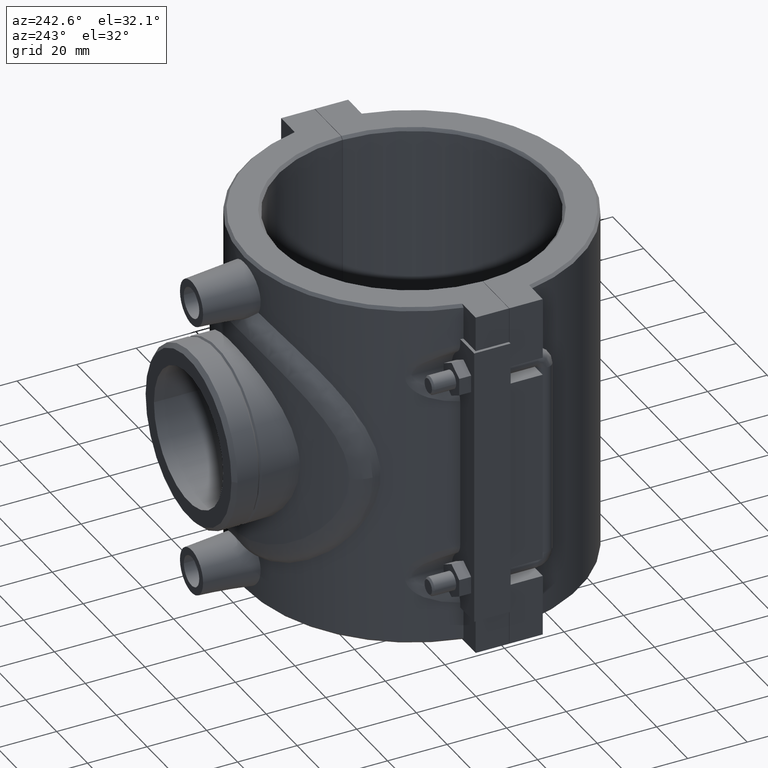
[diagram: clean part render]
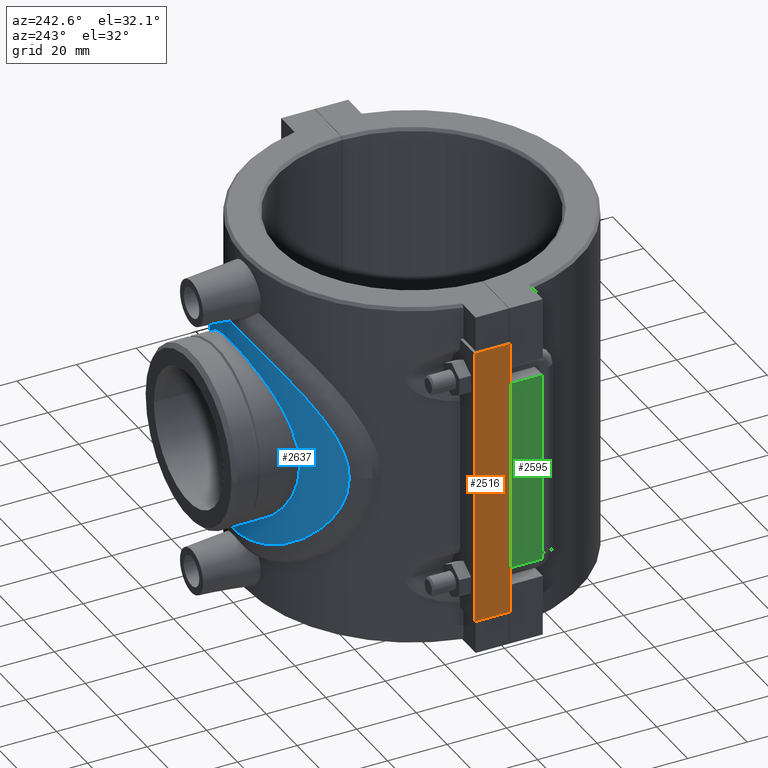
[diagram: same view with three faces highlighted in distinct colors, each labeled with its STEP entity id]
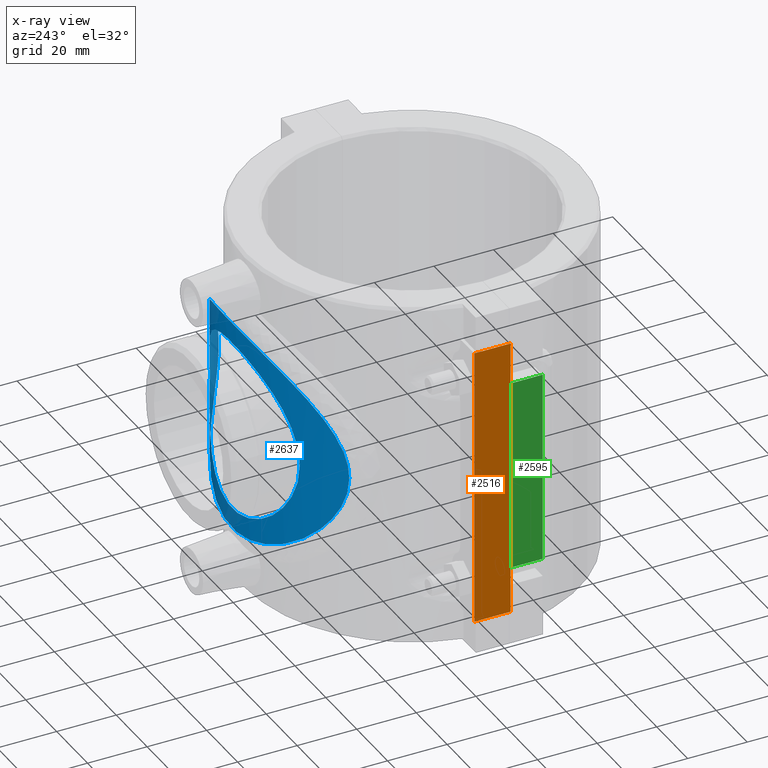
[diagram: x-ray of the same camera — body ghosted, the three highlighted faces saturated]
A machine part, auxiliary view with three faces highlighted in distinct colors.
The next image is the same camera in x-ray (body ghosted, the three faces saturated) — at least one of them is partly hidden behind the body in this view.
Their STEP definitions:

[orange] entity #2516 — the highlighted planar face has unit normal (1, 0, 0).
#217=FACE_OUTER_BOUND('',#378,.T.);
#378=EDGE_LOOP('',(#1723,#1724,#1725,#1726));
#582=LINE('',#3583,#781);
#585=LINE('',#3592,#784);
#590=LINE('',#3601,#789);
#605=LINE('',#3670,#804);
#781=VECTOR('',#2915,12.2);
#784=VECTOR('',#2922,12.2);
#789=VECTOR('',#2929,94.4);
#804=VECTOR('',#2950,94.4);
#1071=VERTEX_POINT('',#3580);
#1072=VERTEX_POINT('',#3582);
#1075=VERTEX_POINT('',#3589);
#1076=VERTEX_POINT('',#3591);
#1323=EDGE_CURVE('',#1072,#1071,#582,.T.);
#1327=EDGE_CURVE('',#1076,#1075,#585,.T.);
#1332=EDGE_CURVE('',#1072,#1075,#590,.T.);
#1353=EDGE_CURVE('',#1071,#1076,#605,.T.);
#1723=ORIENTED_EDGE('',*,*,#1332,.F.);
#1724=ORIENTED_EDGE('',*,*,#1323,.T.);
#1725=ORIENTED_EDGE('',*,*,#1353,.T.);
#1726=ORIENTED_EDGE('',*,*,#1327,.T.);
#2430=PLANE('',#2681);
#2516=ADVANCED_FACE('',(#217),#2430,.F.);
#2681=AXIS2_PLACEMENT_3D('',#3669,#2948,#2949);
#2915=DIRECTION('',(0.,-1.,0.));
#2922=DIRECTION('',(0.,1.,0.));
#2929=DIRECTION('',(0.,0.,1.));
#2948=DIRECTION('center_axis',(1.,0.,0.));
#2949=DIRECTION('ref_axis',(0.,1.,0.));
#2950=DIRECTION('',(0.,0.,1.));
#3580=CARTESIAN_POINT('',(-64.,0.0499999999999989,-47.2));
#3582=CARTESIAN_POINT('',(-64.,12.25,-47.2));
#3583=CARTESIAN_POINT('',(-64.,0.0499999999999989,-47.2));
#3589=CARTESIAN_POINT('',(-64.,12.25,47.2));
#3591=CARTESIAN_POINT('',(-64.,0.0499999999999989,47.2));
#3592=CARTESIAN_POINT('',(-64.,0.0499999999999989,47.2));
#3601=CARTESIAN_POINT('',(-64.,12.25,0.));
#3669=CARTESIAN_POINT('Origin',(-64.,0.0499999999999991,0.));
#3670=CARTESIAN_POINT('',(-64.,0.0499999999999991,0.));

[blue] entity #2637 — the highlighted cylindrical surface (partial cylindrical patch) has radius 60.3 mm, axis along (0, 0, -1).
#93=CYLINDRICAL_SURFACE('',#2861,60.3);
#143=FACE_BOUND('',#537,.T.);
#174=B_SPLINE_CURVE_WITH_KNOTS('',3,(#4505,#4506,#4507,#4508,#4509,#4510,
#4511,#4512,#4513,#4514,#4515,#4516,#4517,#4518,#4519,#4520,#4521,#4522,
#4523,#4524,#4525,#4526,#4527,#4528,#4529,#4530,#4531,#4532),
 .UNSPECIFIED.,.T.,.F.,(4,1,1,1,1,1,1,1,1,1,1,1,1,1,1,1,1,1,1,1,1,1,1,1,
1,4),(0.,1.02425932740397,2.04851865480795,3.07277798221192,4.09703730961589,
5.46271641282119,6.82839551602649,7.51123506762914,8.19407461923179,9.55975372243709,
10.9254328256424,12.2911119288477,13.656791032053,14.3396305836556,15.0224701352583,
16.3881492384636,17.7538283416689,19.1195074448742,20.4851865480795,21.1680260996821,
21.8508656512848,23.2165447544901,24.5822238576954,26.6307425125033,27.6550018399073,
28.6792611673113),.UNSPECIFIED.);
#210=B_SPLINE_CURVE_WITH_KNOTS('',3,(#5490,#5491,#5492,#5493,#5494,#5495,
#5496,#5497,#5498,#5499,#5500,#5501,#5502,#5503,#5504,#5505,#5506,#5507,
#5508,#5509,#5510,#5511,#5512,#5513,#5514,#5515,#5516,#5517,#5518,#5519,
#5520,#5521,#5522,#5523,#5524,#5525,#5526,#5527,#5528,#5529,#5530,#5531,
#5532,#5533,#5534,#5535,#5536,#5537,#5538,#5539,#5540,#5541,#5542,#5543,
#5544,#5545,#5546,#5547,#5548,#5549,#5550,#5551,#5552,#5553,#5554,#5555),
 .UNSPECIFIED.,.T.,.F.,(4,2,2,2,2,2,2,2,2,2,2,2,2,2,2,2,2,2,2,2,2,2,2,2,
2,2,2,2,2,2,2,2,4),(0.,0.560052998741934,1.12010599748387,1.6801589962258,
2.24021199496774,2.79895552299949,3.35769905103125,3.916442579063,4.47518610709475,
5.03392963512651,5.59267316315826,6.15141669119002,6.71016021922177,7.27021321796371,
7.83026621670564,8.39031921544758,8.95037221418951,9.51042521293144,10.0704782116734,
10.6305312104153,11.1905842091572,11.749327737189,12.3080712652208,12.8668147932525,
13.4255583212843,13.984301849316,14.5430453773478,15.1017889053795,15.6605324334113,
16.2205854321532,16.7806384308952,17.3406914296371,17.900744428379),
 .UNSPECIFIED.);
#338=FACE_OUTER_BOUND('',#536,.T.);
#536=EDGE_LOOP('',(#2286));
#537=EDGE_LOOP('',(#2287));
#1173=VERTEX_POINT('',#4503);
#1298=VERTEX_POINT('',#5489);
#1456=EDGE_CURVE('',#1173,#1173,#174,.T.);
#1646=EDGE_CURVE('',#1298,#1298,#210,.T.);
#2286=ORIENTED_EDGE('',*,*,#1456,.F.);
#2287=ORIENTED_EDGE('',*,*,#1646,.T.);
#2637=ADVANCED_FACE('',(#338,#143),#93,.T.);
#2861=AXIS2_PLACEMENT_3D('',#5635,#3461,#3462);
#3461=DIRECTION('center_axis',(0.,0.,-1.));
#3462=DIRECTION('ref_axis',(1.,0.,0.));
#4503=CARTESIAN_POINT('',(-42.3157894736842,42.9588635931962,-5.55111512312578E-15));
#4505=CARTESIAN_POINT('Ctrl Pts',(-42.3164324244183,42.9574916590565,-0.000177281542254723));
#4506=CARTESIAN_POINT('Ctrl Pts',(-42.3160445018875,42.9581537197012,-2.80072938108253));
#4507=CARTESIAN_POINT('Ctrl Pts',(-41.5304970953936,43.7513333472452,-8.40057930435324));
#4508=CARTESIAN_POINT('Ctrl Pts',(-38.2806041087271,46.6939446235443,-16.0051364081152));
#4509=CARTESIAN_POINT('Ctrl Pts',(-33.337227903732,50.4024283199438,-22.623507314427));
#4510=CARTESIAN_POINT('Ctrl Pts',(-26.1587684904021,54.5967697552129,-28.7882261762013));
#4511=CARTESIAN_POINT('Ctrl Pts',(-16.2283523006792,58.5185734719466,-33.8459554584293));
#4512=CARTESIAN_POINT('Ctrl Pts',(-5.51979481916638,60.3359875740193,-36.0408440258954));
#4513=CARTESIAN_POINT('Ctrl Pts',(3.30845187167748,60.3271278236238,-36.0346939654187));
#4514=CARTESIAN_POINT('Ctrl Pts',(11.9795221000619,59.3785179174446,-34.8774395989939));
#4515=CARTESIAN_POINT('Ctrl Pts',(21.9469234049248,56.5652396009508,-31.3964455265501));
#4516=CARTESIAN_POINT('Ctrl Pts',(31.5368561644533,51.7026505621251,-24.7307144094139));
#4517=CARTESIAN_POINT('Ctrl Pts',(38.498028091835,46.5957248805214,-16.146267506287));
#4518=CARTESIAN_POINT('Ctrl Pts',(41.7966621248401,43.4732709595119,-7.47922246447008));
#4519=CARTESIAN_POINT('Ctrl Pts',(42.4891048199159,42.7872860755658,-0.00100245265220519));
#4520=CARTESIAN_POINT('Ctrl Pts',(41.7971203091863,43.4729563316244,7.47902926967761));
#4521=CARTESIAN_POINT('Ctrl Pts',(38.4980328818942,46.5953559687873,16.1457187038187));
#4522=CARTESIAN_POINT('Ctrl Pts',(31.5374220558865,51.7032778717055,24.7306275110884));
#4523=CARTESIAN_POINT('Ctrl Pts',(21.9469794373482,56.5643005320585,31.3965718921596));
#4524=CARTESIAN_POINT('Ctrl Pts',(11.978707564583,59.378908396268,34.8771632476528));
#4525=CARTESIAN_POINT('Ctrl Pts',(3.30885407975617,60.3264146896481,36.0349994181199));
#4526=CARTESIAN_POINT('Ctrl Pts',(-5.51843575388322,60.3383829795316,36.0398746320811));
#4527=CARTESIAN_POINT('Ctrl Pts',(-16.2306580171945,58.5137496849994,33.848128757257));
#4528=CARTESIAN_POINT('Ctrl Pts',(-28.8602785062002,53.5394317417707,27.4037539945216));
#4529=CARTESIAN_POINT('Ctrl Pts',(-37.1891133291303,47.6886398785429,18.5351818220309));
#4530=CARTESIAN_POINT('Ctrl Pts',(-41.5328246305779,43.7473609833769,8.40273329288842));
#4531=CARTESIAN_POINT('Ctrl Pts',(-42.316820346949,42.9568295984118,2.80037481799802));
#4532=CARTESIAN_POINT('Ctrl Pts',(-42.3164324244183,42.9574916590565,-0.000177281542255159));
#5489=CARTESIAN_POINT('',(-29.14925,52.7864681943915,-5.55111512312578E-16));
#5490=CARTESIAN_POINT('Ctrl Pts',(-29.14925,52.7864681943915,-5.55111512312578E-16));
#5491=CARTESIAN_POINT('Ctrl Pts',(-29.14925,52.7864681943915,-1.86684332913978));
#5492=CARTESIAN_POINT('Ctrl Pts',(-28.96707836032,52.8883872398851,-3.78479585788135));
#5493=CARTESIAN_POINT('Ctrl Pts',(-28.2135154789816,53.2941899005517,-7.57719298363822));
#5494=CARTESIAN_POINT('Ctrl Pts',(-27.6424222104898,53.5974319710266,-9.45176540294394));
#5495=CARTESIAN_POINT('Ctrl Pts',(-26.1467351227172,54.3427669976164,-13.0302642126263));
#5496=CARTESIAN_POINT('Ctrl Pts',(-25.2209521925411,54.7845080489122,-14.7376220996934));
#5497=CARTESIAN_POINT('Ctrl Pts',(-23.0927687557541,55.7150139777928,-17.8890459860959));
#5498=CARTESIAN_POINT('Ctrl Pts',(-21.8900831035176,56.2028907564882,-19.3331815794863));
#5499=CARTESIAN_POINT('Ctrl Pts',(-19.3361707498524,57.1318170930259,-21.8870939331515));
#5500=CARTESIAN_POINT('Ctrl Pts',(-17.8935079463079,57.6072260622788,-23.0893611122786));
#5501=CARTESIAN_POINT('Ctrl Pts',(-14.7414522292465,58.4932449718216,-25.2187590808109));
#5502=CARTESIAN_POINT('Ctrl Pts',(-13.0319766369827,58.9031613561613,-26.1460560048751));
#5503=CARTESIAN_POINT('Ctrl Pts',(-9.44907243978142,59.5829662386256,-27.643511149529));
#5504=CARTESIAN_POINT('Ctrl Pts',(-7.57226318378987,59.8529881630695,-28.2148642538166));
#5505=CARTESIAN_POINT('Ctrl Pts',(-3.7790014840046,60.2116144075536,-28.9678594719004));
#5506=CARTESIAN_POINT('Ctrl Pts',(-1.86247842677252,60.3,-29.14925));
#5507=CARTESIAN_POINT('Ctrl Pts',(1.86247842677251,60.3,-29.14925));
#5508=CARTESIAN_POINT('Ctrl Pts',(3.77900148400458,60.2116144075536,-28.9678594719004));
#5509=CARTESIAN_POINT('Ctrl Pts',(7.57226318378986,59.8529881630695,-28.2148642538166));
#5510=CARTESIAN_POINT('Ctrl Pts',(9.4490724397814,59.5829662386256,-27.643511149529));
#5511=CARTESIAN_POINT('Ctrl Pts',(13.0319766369827,58.9031613561613,-26.1460560048751));
#5512=CARTESIAN_POINT('Ctrl Pts',(14.7414522292465,58.4932449718216,-25.2187590808109));
#5513=CARTESIAN_POINT('Ctrl Pts',(17.8935079463079,57.6072260622788,-23.0893611122786));
#5514=CARTESIAN_POINT('Ctrl Pts',(19.3361707498524,57.131817093026,-21.8870939331515));
#5515=CARTESIAN_POINT('Ctrl Pts',(21.8900831035176,56.2028907564882,-19.3331815794864));
#5516=CARTESIAN_POINT('Ctrl Pts',(23.0927687557541,55.7150139777928,-17.8890459860959));
#5517=CARTESIAN_POINT('Ctrl Pts',(25.2209521925411,54.7845080489122,-14.7376220996934));
#5518=CARTESIAN_POINT('Ctrl Pts',(26.1467351227172,54.3427669976164,-13.0302642126264));
#5519=CARTESIAN_POINT('Ctrl Pts',(27.6424222104898,53.5974319710266,-9.45176540294395));
#5520=CARTESIAN_POINT('Ctrl Pts',(28.2135154789816,53.2941899005517,-7.57719298363822));
#5521=CARTESIAN_POINT('Ctrl Pts',(28.96707836032,52.8883872398851,-3.78479585788135));
#5522=CARTESIAN_POINT('Ctrl Pts',(29.14925,52.7864681943915,-1.86684332913978));
#5523=CARTESIAN_POINT('Ctrl Pts',(29.14925,52.7864681943915,1.86684332913978));
#5524=CARTESIAN_POINT('Ctrl Pts',(28.96707836032,52.8883872398851,3.78479585788135));
#5525=CARTESIAN_POINT('Ctrl Pts',(28.2135154789816,53.2941899005517,7.57719298363822));
#5526=CARTESIAN_POINT('Ctrl Pts',(27.6424222104898,53.5974319710266,9.45176540294394));
#5527=CARTESIAN_POINT('Ctrl Pts',(26.1467351227172,54.3427669976164,13.0302642126263));
#5528=CARTESIAN_POINT('Ctrl Pts',(25.2209521925411,54.7845080489122,14.7376220996934));
#5529=CARTESIAN_POINT('Ctrl Pts',(23.0927687557541,55.7150139777928,17.8890459860959));
#5530=CARTESIAN_POINT('Ctrl Pts',(21.8900831035176,56.2028907564882,19.3331815794863));
#5531=CARTESIAN_POINT('Ctrl Pts',(19.3361707498524,57.131817093026,21.8870939331515));
#5532=CARTESIAN_POINT('Ctrl Pts',(17.8935079463079,57.6072260622788,23.0893611122786));
#5533=CARTESIAN_POINT('Ctrl Pts',(14.7414522292466,58.4932449718216,25.2187590808109));
#5534=CARTESIAN_POINT('Ctrl Pts',(13.0319766369827,58.9031613561613,26.1460560048751));
#5535=CARTESIAN_POINT('Ctrl Pts',(9.44907243978143,59.5829662386256,27.643511149529));
#5536=CARTESIAN_POINT('Ctrl Pts',(7.57226318378988,59.8529881630695,28.2148642538166));
#5537=CARTESIAN_POINT('Ctrl Pts',(3.7790014840046,60.2116144075536,28.9678594719004));
#5538=CARTESIAN_POINT('Ctrl Pts',(1.86247842677253,60.3,29.14925));
#5539=CARTESIAN_POINT('Ctrl Pts',(-1.86247842677251,60.3,29.14925));
#5540=CARTESIAN_POINT('Ctrl Pts',(-3.77900148400458,60.2116144075536,28.9678594719004));
#5541=CARTESIAN_POINT('Ctrl Pts',(-7.57226318378985,59.8529881630695,28.2148642538166));
#5542=CARTESIAN_POINT('Ctrl Pts',(-9.44907243978139,59.5829662386256,27.643511149529));
#5543=CARTESIAN_POINT('Ctrl Pts',(-13.0319766369827,58.9031613561613,26.1460560048751));
#5544=CARTESIAN_POINT('Ctrl Pts',(-14.7414522292465,58.4932449718216,25.2187590808109));
#5545=CARTESIAN_POINT('Ctrl Pts',(-17.8935079463078,57.6072260622788,23.0893611122786));
#5546=CARTESIAN_POINT('Ctrl Pts',(-19.3361707498524,57.131817093026,21.8870939331516));
#5547=CARTESIAN_POINT('Ctrl Pts',(-21.8900831035176,56.2028907564882,19.3331815794864));
#5548=CARTESIAN_POINT('Ctrl Pts',(-23.092768755754,55.7150139777928,17.889045986096));
#5549=CARTESIAN_POINT('Ctrl Pts',(-25.2209521925411,54.7845080489122,14.7376220996934));
#5550=CARTESIAN_POINT('Ctrl Pts',(-26.1467351227172,54.3427669976164,13.0302642126264));
#5551=CARTESIAN_POINT('Ctrl Pts',(-27.6424222104898,53.5974319710266,9.45176540294394));
#5552=CARTESIAN_POINT('Ctrl Pts',(-28.2135154789816,53.2941899005517,7.57719298363822));
#5553=CARTESIAN_POINT('Ctrl Pts',(-28.96707836032,52.8883872398851,3.78479585788135));
#5554=CARTESIAN_POINT('Ctrl Pts',(-29.14925,52.7864681943915,1.86684332913978));
#5555=CARTESIAN_POINT('Ctrl Pts',(-29.14925,52.7864681943915,-5.55111512312578E-16));
#5635=CARTESIAN_POINT('Origin',(0.,0.,59.));

[green] entity #2595 — the highlighted planar face has unit normal (-1, 0, 0).
#296=FACE_OUTER_BOUND('',#480,.T.);
#480=EDGE_LOOP('',(#2100,#2101,#2102,#2103));
#701=LINE('',#5041,#900);
#704=LINE('',#5046,#903);
#712=LINE('',#5062,#911);
#716=LINE('',#5078,#915);
#900=VECTOR('',#3254,64.8);
#903=VECTOR('',#3259,11.2);
#911=VECTOR('',#3273,11.2);
#915=VECTOR('',#3281,64.8);
#1230=VERTEX_POINT('',#5038);
#1231=VERTEX_POINT('',#5040);
#1232=VERTEX_POINT('',#5044);
#1237=VERTEX_POINT('',#5060);
#1540=EDGE_CURVE('',#1231,#1230,#701,.T.);
#1543=EDGE_CURVE('',#1232,#1231,#704,.T.);
#1551=EDGE_CURVE('',#1230,#1237,#712,.T.);
#1557=EDGE_CURVE('',#1237,#1232,#716,.T.);
#2100=ORIENTED_EDGE('',*,*,#1543,.T.);
#2101=ORIENTED_EDGE('',*,*,#1540,.T.);
#2102=ORIENTED_EDGE('',*,*,#1551,.T.);
#2103=ORIENTED_EDGE('',*,*,#1557,.T.);
#2476=PLANE('',#2793);
#2595=ADVANCED_FACE('',(#296),#2476,.T.);
#2793=AXIS2_PLACEMENT_3D('',#5100,#3291,#3292);
#3254=DIRECTION('',(0.,0.,1.));
#3259=DIRECTION('',(0.,-1.,0.));
#3273=DIRECTION('',(0.,1.,0.));
#3281=DIRECTION('',(0.,0.,-1.));
#3291=DIRECTION('center_axis',(-1.,0.,0.));
#3292=DIRECTION('ref_axis',(0.,-1.,0.));
#5038=CARTESIAN_POINT('',(-63.,-11.25,32.4));
#5040=CARTESIAN_POINT('',(-63.,-11.25,-32.4));
#5041=CARTESIAN_POINT('',(-63.,-11.25,0.));
#5044=CARTESIAN_POINT('',(-63.,-0.0499999999999989,-32.4));
#5046=CARTESIAN_POINT('',(-63.,1.11022302462516E-14,-32.4));
#5060=CARTESIAN_POINT('',(-63.,-0.0499999999999989,32.4));
#5062=CARTESIAN_POINT('',(-63.,1.11022302462516E-14,32.4));
#5078=CARTESIAN_POINT('',(-63.,-0.0499999999999989,-29.5));
#5100=CARTESIAN_POINT('Origin',(-63.,11.25,0.));